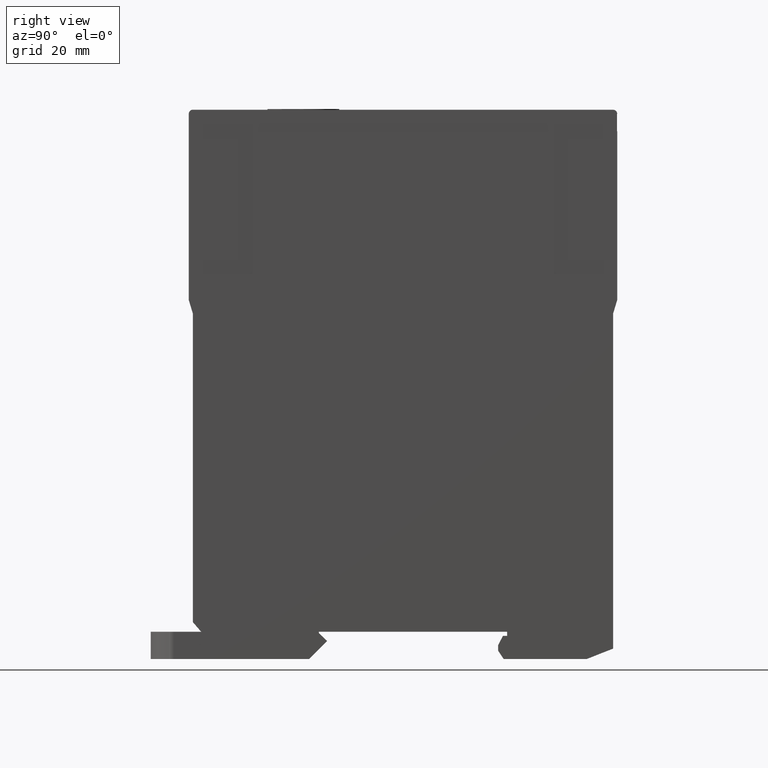
[diagram: clean part render]
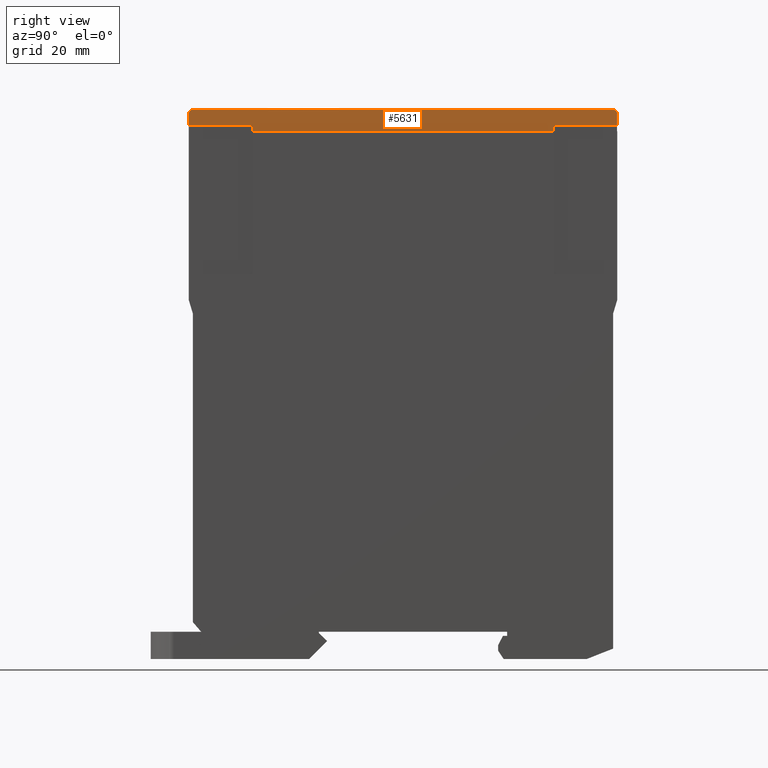
[diagram: same view with one face highlighted and labeled with its STEP entity id]
A machine part, right view. The second image highlights one B-rep face of the part: STEP entity #5631.
In plain terms, the highlighted planar face has unit normal (1, 0, 0).
Its self-contained STEP definition (entity closure, byte-faithful):
#1134=DIRECTION('',(0.E0,-3.496765431889E-14,1.E0));
#1135=VECTOR('',#1134,2.032000000001E0);
#1136=CARTESIAN_POINT('',(1.095205871097E1,-3.938691995062E1,9.822338632683E1));
#1137=LINE('',#1136,#1135);
#1522=DIRECTION('',(6.993530863756E-14,1.E0,0.E0));
#1523=VECTOR('',#1522,5.080000000018E-2);
#1524=CARTESIAN_POINT('',(1.095205871097E1,3.936228004937E1,1.002553863268E2));
#1525=LINE('',#1524,#1523);
#1526=DIRECTION('',(0.E0,1.E0,0.E0));
#1527=VECTOR('',#1526,1.16332E1);
#1528=CARTESIAN_POINT('',(1.095205871097E1,2.772908004937E1,9.822338632683E1));
#1529=LINE('',#1528,#1527);
#1530=DIRECTION('',(0.E0,0.E0,1.E0));
#1531=VECTOR('',#1530,1.27E0);
#1532=CARTESIAN_POINT('',(1.095205871097E1,2.772908004937E1,9.695338632683E1));
#1533=LINE('',#1532,#1531);
#1534=DIRECTION('',(0.E0,1.E0,0.E0));
#1535=VECTOR('',#1534,5.543199999999E1);
#1536=CARTESIAN_POINT('',(1.095205871097E1,-2.770291995062E1,9.695338632683E1));
#1537=LINE('',#1536,#1535);
#1538=DIRECTION('',(0.E0,0.E0,-1.E0));
#1539=VECTOR('',#1538,1.27E0);
#1540=CARTESIAN_POINT('',(1.095205871097E1,-2.770291995062E1,9.822338632683E1));
#1541=LINE('',#1540,#1539);
#1542=CARTESIAN_POINT('',(1.095205871097E1,-3.862491995062E1,1.002553863268E2));
#1543=DIRECTION('',(1.E0,0.E0,0.E0));
#1544=DIRECTION('',(0.E0,-7.071067811865E-1,7.071067811865E-1));
#1545=AXIS2_PLACEMENT_3D('',#1542,#1543,#1544);
#1547=CARTESIAN_POINT('',(1.095205871097E1,-3.862491995062E1,1.002553863268E2));
#1548=DIRECTION('',(1.E0,0.E0,0.E0));
#1549=DIRECTION('',(0.E0,-3.450141892798E-13,1.E0));
#1550=AXIS2_PLACEMENT_3D('',#1547,#1548,#1549);
#1552=DIRECTION('',(0.E0,-1.E0,0.E0));
#1553=VECTOR('',#1552,7.727599999999E1);
#1554=CARTESIAN_POINT('',(1.095205871097E1,3.865108004937E1,1.010173863268E2));
#1555=LINE('',#1554,#1553);
#1556=CARTESIAN_POINT('',(1.095205871097E1,3.865108004937E1,1.002553863268E2));
#1557=DIRECTION('',(1.E0,0.E0,0.E0));
#1558=DIRECTION('',(0.E0,7.071067811865E-1,7.071067811865E-1));
#1559=AXIS2_PLACEMENT_3D('',#1556,#1557,#1558);
#1561=CARTESIAN_POINT('',(1.095205871097E1,3.865108004937E1,1.002553863268E2));
#1562=DIRECTION('',(1.E0,0.E0,0.E0));
#1563=DIRECTION('',(0.E0,1.E0,7.459766254699E-14));
#1564=AXIS2_PLACEMENT_3D('',#1561,#1562,#1563);
#1812=DIRECTION('',(0.E0,0.E0,-1.E0));
#1813=VECTOR('',#1812,2.032E0);
#1814=CARTESIAN_POINT('',(1.095205871097E1,3.936228004937E1,1.002553863268E2));
#1815=LINE('',#1814,#1813);
#1964=DIRECTION('',(0.E0,-1.E0,0.E0));
#1965=VECTOR('',#1964,1.1684E1);
#1966=CARTESIAN_POINT('',(1.095205871097E1,-2.770291995062E1,9.822338632683E1));
#1967=LINE('',#1966,#1965);
#3151=CARTESIAN_POINT('',(1.095205871097E1,2.772908004937E1,9.695338632683E1));
#3152=VERTEX_POINT('',#3151);
#3199=CARTESIAN_POINT('',(1.095205871097E1,-2.770291995062E1,9.695338632683E1));
#3200=VERTEX_POINT('',#3199);
#3203=CARTESIAN_POINT('',(1.095205871097E1,2.772908004937E1,9.822338632683E1));
#3204=VERTEX_POINT('',#3203);
#3317=CARTESIAN_POINT('',(1.095205871097E1,-2.770291995062E1,9.822338632683E1));
#3318=VERTEX_POINT('',#3317);
#3321=CARTESIAN_POINT('',(1.095205871097E1,3.936228004937E1,9.822338632683E1));
#3322=VERTEX_POINT('',#3321);
#3381=CARTESIAN_POINT('',(1.095205871097E1,3.936228004937E1,1.002553863268E2));
#3382=VERTEX_POINT('',#3381);
#3383=CARTESIAN_POINT('',(1.095205871097E1,3.941308004937E1,1.002553863268E2));
#3384=VERTEX_POINT('',#3383);
#3389=CARTESIAN_POINT('',(1.095205871097E1,-3.938691995062E1,1.002553863268E2));
#3390=VERTEX_POINT('',#3389);
#3391=CARTESIAN_POINT('',(1.095205871097E1,-3.862491995062E1,1.010173863268E2));
#3392=VERTEX_POINT('',#3391);
#3471=CARTESIAN_POINT('',(1.095205871097E1,-3.938691995062E1,9.822338632683E1));
#3472=VERTEX_POINT('',#3471);
#3473=CARTESIAN_POINT('',(1.095205871097E1,3.918989541663E1,1.007942016941E2));
#3474=CARTESIAN_POINT('',(1.095205871097E1,3.865108004937E1,1.010173863268E2));
#3475=VERTEX_POINT('',#3473);
#3476=VERTEX_POINT('',#3474);
#3489=CARTESIAN_POINT('',(1.095205871097E1,-3.916373531789E1,1.007942016941E2));
#3490=VERTEX_POINT('',#3489);
#5602=CARTESIAN_POINT('',(1.095205871097E1,4.335308004937E1,9.675018632683E1));
#5603=DIRECTION('',(1.E0,0.E0,0.E0));
#5604=DIRECTION('',(0.E0,0.E0,-1.E0));
#5605=AXIS2_PLACEMENT_3D('',#5602,#5603,#5604);
#5606=PLANE('',#5605);
#5608=ORIENTED_EDGE('',*,*,#5607,.F.);
#5610=ORIENTED_EDGE('',*,*,#5609,.T.);
#5612=ORIENTED_EDGE('',*,*,#5611,.F.);
#5614=ORIENTED_EDGE('',*,*,#5613,.F.);
#5616=ORIENTED_EDGE('',*,*,#5615,.F.);
#5618=ORIENTED_EDGE('',*,*,#5617,.F.);
#5620=ORIENTED_EDGE('',*,*,#5619,.T.);
#5621=ORIENTED_EDGE('',*,*,#5256,.T.);
#5622=ORIENTED_EDGE('',*,*,#5595,.F.);
#5623=ORIENTED_EDGE('',*,*,#5593,.F.);
#5624=ORIENTED_EDGE('',*,*,#5367,.F.);
#5626=ORIENTED_EDGE('',*,*,#5625,.F.);
#5628=ORIENTED_EDGE('',*,*,#5627,.F.);
#5629=EDGE_LOOP('',(#5608,#5610,#5612,#5614,#5616,#5618,#5620,#5621,#5622,#5623,
#5624,#5626,#5628));
#5630=FACE_OUTER_BOUND('',#5629,.F.);
#5631=ADVANCED_FACE('',(#5630),#5606,.T.);
#1546=CIRCLE('',#1545,7.62E-1);
#1551=CIRCLE('',#1550,7.62E-1);
#1560=CIRCLE('',#1559,7.62E-1);
#1565=CIRCLE('',#1564,7.62E-1);
#5256=EDGE_CURVE('',#3472,#3390,#1137,.T.);
#5367=EDGE_CURVE('',#3476,#3392,#1555,.T.);
#5593=EDGE_CURVE('',#3392,#3490,#1551,.T.);
#5595=EDGE_CURVE('',#3490,#3390,#1546,.T.);
#5607=EDGE_CURVE('',#3382,#3384,#1525,.T.);
#5609=EDGE_CURVE('',#3382,#3322,#1815,.T.);
#5611=EDGE_CURVE('',#3204,#3322,#1529,.T.);
#5613=EDGE_CURVE('',#3152,#3204,#1533,.T.);
#5615=EDGE_CURVE('',#3200,#3152,#1537,.T.);
#5617=EDGE_CURVE('',#3318,#3200,#1541,.T.);
#5619=EDGE_CURVE('',#3318,#3472,#1967,.T.);
#5625=EDGE_CURVE('',#3475,#3476,#1560,.T.);
#5627=EDGE_CURVE('',#3384,#3475,#1565,.T.);